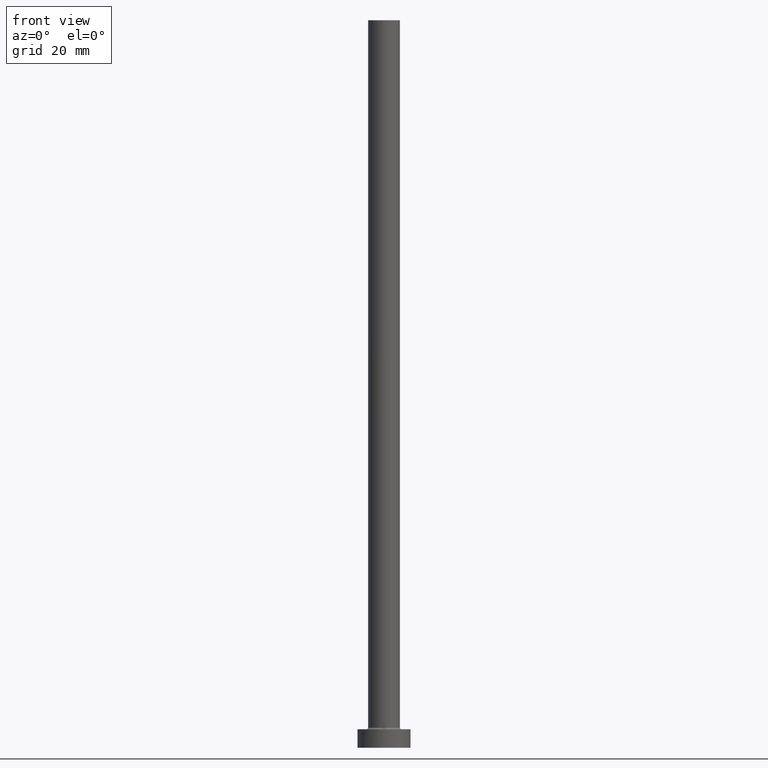
[diagram: clean part render]
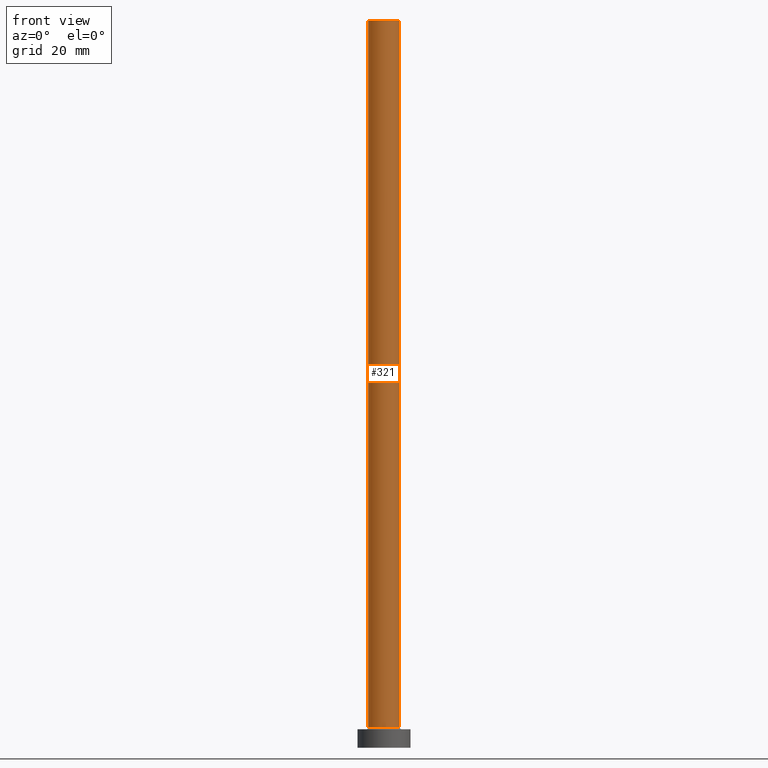
[diagram: same view with one face highlighted and labeled with its STEP entity id]
A machine part, front view. The second image highlights one B-rep face of the part: STEP entity #321.
In plain terms, the highlighted cylindrical surface (edge-blend (fillet) strip) has radius 6 mm, axis along (-0, -0, -1).
Its self-contained STEP definition (entity closure, byte-faithful):
#10 = CARTESIAN_POINT ( 'NONE',  ( 6.000000000000000888, 7.347880794884120722E-16, 275.0000000000000000 ) ) ;
#51 = CARTESIAN_POINT ( 'NONE',  ( 0.000000000000000000, 0.000000000000000000, 275.0000000000000000 ) ) ;
#52 = CIRCLE ( 'NONE', #436, 6.000000000000000888 ) ;
#61 = ORIENTED_EDGE ( 'NONE', *, *, #458, .F. ) ;
#89 = CARTESIAN_POINT ( 'NONE',  ( -6.000000000000000888, 0.000000000000000000, 7.699999999999985079 ) ) ;
#91 = VECTOR ( 'NONE', #433, 1000.000000000000000 ) ;
#100 = ORIENTED_EDGE ( 'NONE', *, *, #443, .T. ) ;
#109 = CARTESIAN_POINT ( 'NONE',  ( 0.000000000000000000, 0.000000000000000000, 7.699999999999985079 ) ) ;
#127 = VECTOR ( 'NONE', #259, 1000.000000000000000 ) ;
#131 = CYLINDRICAL_SURFACE ( 'NONE', #381, 6.000000000000000888 ) ;
#138 = EDGE_LOOP ( 'NONE', ( #61, #239, #100, #399 ) ) ;
#140 = VERTEX_POINT ( 'NONE', #89 ) ;
#141 = FACE_OUTER_BOUND ( 'NONE', #138, .T. ) ;
#151 = CARTESIAN_POINT ( 'NONE',  ( -6.000000000000000888, 0.000000000000000000, 275.0000000000000000 ) ) ;
#167 = EDGE_CURVE ( 'NONE', #460, #317, #52, .T. ) ;
#195 = DIRECTION ( 'NONE',  ( 0.000000000000000000, 0.000000000000000000, 1.000000000000000000 ) ) ;
#211 = DIRECTION ( 'NONE',  ( -0.000000000000000000, -0.000000000000000000, -1.000000000000000000 ) ) ;
#220 = CARTESIAN_POINT ( 'NONE',  ( -6.000000000000000888, 0.000000000000000000, 275.0000000000000000 ) ) ;
#224 = DIRECTION ( 'NONE',  ( 1.000000000000000000, 0.000000000000000000, 0.000000000000000000 ) ) ;
#238 = DIRECTION ( 'NONE',  ( 1.000000000000000000, 0.000000000000000000, 0.000000000000000000 ) ) ;
#239 = ORIENTED_EDGE ( 'NONE', *, *, #167, .F. ) ;
#257 = LINE ( 'NONE', #220, #91 ) ;
#259 = DIRECTION ( 'NONE',  ( -0.000000000000000000, -0.000000000000000000, -1.000000000000000000 ) ) ;
#317 = VERTEX_POINT ( 'NONE', #452 ) ;
#321 = ADVANCED_FACE ( 'NONE', ( #141 ), #131, .T. ) ;
#361 = DIRECTION ( 'NONE',  ( -1.000000000000000000, 0.000000000000000000, 0.000000000000000000 ) ) ;
#381 = AXIS2_PLACEMENT_3D ( 'NONE', #394, #211, #361 ) ;
#394 = CARTESIAN_POINT ( 'NONE',  ( 0.000000000000000000, 0.000000000000000000, 275.0000000000000000 ) ) ;
#399 = ORIENTED_EDGE ( 'NONE', *, *, #434, .T. ) ;
#401 = CIRCLE ( 'NONE', #437, 6.000000000000000888 ) ;
#406 = CARTESIAN_POINT ( 'NONE',  ( 6.000000000000000888, 7.347880794884120722E-16, 7.699999999999985079 ) ) ;
#410 = LINE ( 'NONE', #10, #127 ) ;
#433 = DIRECTION ( 'NONE',  ( -0.000000000000000000, -0.000000000000000000, -1.000000000000000000 ) ) ;
#434 = EDGE_CURVE ( 'NONE', #140, #448, #401, .T. ) ;
#436 = AXIS2_PLACEMENT_3D ( 'NONE', #51, #195, #238 ) ;
#437 = AXIS2_PLACEMENT_3D ( 'NONE', #109, #438, #224 ) ;
#438 = DIRECTION ( 'NONE',  ( 0.000000000000000000, 0.000000000000000000, 1.000000000000000000 ) ) ;
#443 = EDGE_CURVE ( 'NONE', #460, #140, #257, .T. ) ;
#448 = VERTEX_POINT ( 'NONE', #406 ) ;
#452 = CARTESIAN_POINT ( 'NONE',  ( 6.000000000000000888, 7.347880794884120722E-16, 275.0000000000000000 ) ) ;
#458 = EDGE_CURVE ( 'NONE', #317, #448, #410, .T. ) ;
#460 = VERTEX_POINT ( 'NONE', #151 ) ;